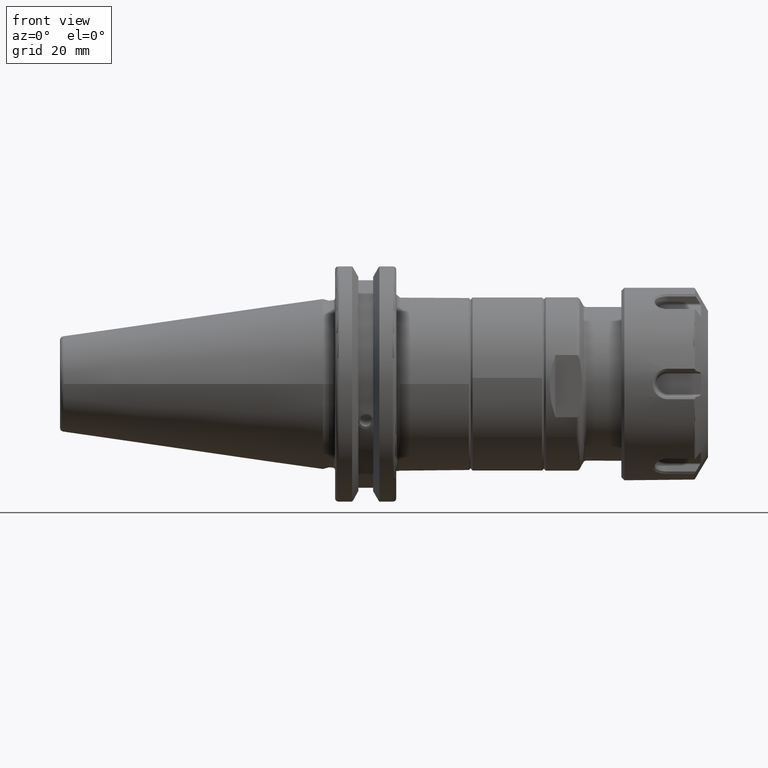
[diagram: clean part render]
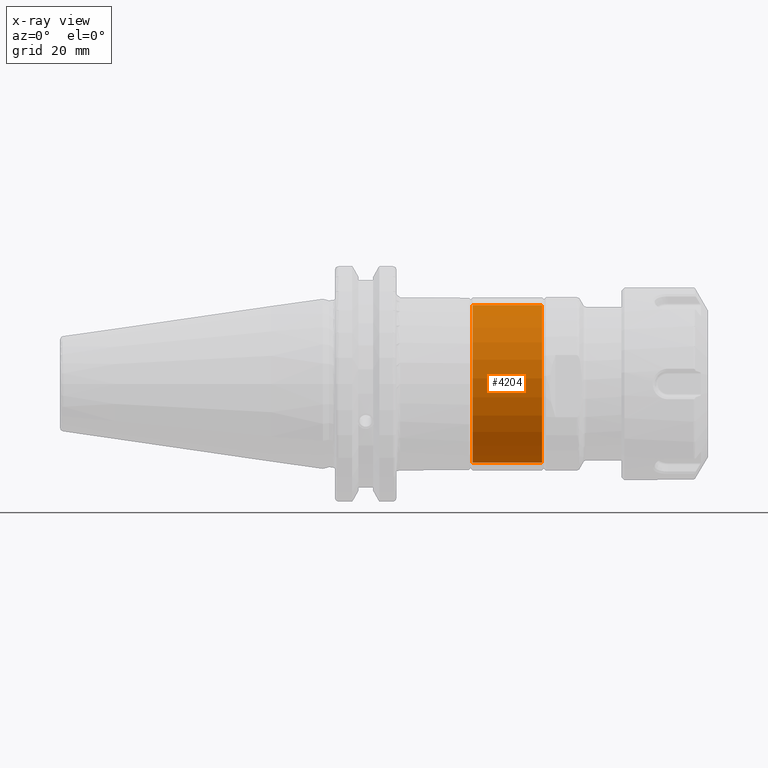
[diagram: x-ray — body ghosted, one internal face saturated and labeled with its STEP entity id]
A machine part, front view, then the same camera in x-ray: the body is ghosted and one INTERNAL B-rep face — a face not visible from any outside direction — is saturated and labeled: STEP entity #4204.
In plain terms, the highlighted cylindrical surface (bore or boss wall) has radius 20.5 mm, axis along (1, -0, 0).
Its self-contained STEP definition (entity closure, byte-faithful):
#489=CYLINDRICAL_SURFACE('',#4654,20.5);
#632=FACE_OUTER_BOUND('',#911,.T.);
#911=EDGE_LOOP('',(#3346,#3347,#3348,#3349,#3350,#3351));
#1186=LINE('',#7070,#1426);
#1426=VECTOR('',#5493,20.5);
#1648=CIRCLE('',#4649,20.5);
#1649=CIRCLE('',#4650,20.5);
#1652=CIRCLE('',#4655,20.5);
#1653=CIRCLE('',#4656,20.5);
#1966=VERTEX_POINT('',#7058);
#1967=VERTEX_POINT('',#7059);
#1970=VERTEX_POINT('',#7069);
#1971=VERTEX_POINT('',#7071);
#2457=EDGE_CURVE('',#1966,#1967,#1648,.T.);
#2458=EDGE_CURVE('',#1967,#1966,#1649,.T.);
#2462=EDGE_CURVE('',#1967,#1970,#1186,.T.);
#2463=EDGE_CURVE('',#1971,#1970,#1652,.T.);
#2464=EDGE_CURVE('',#1970,#1971,#1653,.T.);
#3346=ORIENTED_EDGE('',*,*,#2457,.F.);
#3347=ORIENTED_EDGE('',*,*,#2458,.F.);
#3348=ORIENTED_EDGE('',*,*,#2462,.T.);
#3349=ORIENTED_EDGE('',*,*,#2463,.F.);
#3350=ORIENTED_EDGE('',*,*,#2464,.F.);
#3351=ORIENTED_EDGE('',*,*,#2462,.F.);
#4204=ADVANCED_FACE('',(#632),#489,.F.);
#4649=AXIS2_PLACEMENT_3D('',#7060,#5480,#5481);
#4650=AXIS2_PLACEMENT_3D('',#7061,#5482,#5483);
#4654=AXIS2_PLACEMENT_3D('',#7068,#5491,#5492);
#4655=AXIS2_PLACEMENT_3D('',#7072,#5494,#5495);
#4656=AXIS2_PLACEMENT_3D('',#7073,#5496,#5497);
#5480=DIRECTION('center_axis',(-1.,0.,0.));
#5481=DIRECTION('ref_axis',(0.,-1.,0.));
#5482=DIRECTION('center_axis',(-1.,0.,0.));
#5483=DIRECTION('ref_axis',(0.,-1.,0.));
#5491=DIRECTION('center_axis',(1.,0.,0.));
#5492=DIRECTION('ref_axis',(0.,1.,0.));
#5493=DIRECTION('',(-1.,0.,0.));
#5494=DIRECTION('center_axis',(1.,0.,0.));
#5495=DIRECTION('ref_axis',(0.,-1.,0.));
#5496=DIRECTION('center_axis',(1.,0.,0.));
#5497=DIRECTION('ref_axis',(0.,-1.,0.));
#7058=CARTESIAN_POINT('',(18.5,20.5,-2.51052593825207E-15));
#7059=CARTESIAN_POINT('',(18.5,-20.5,-2.51052593825207E-15));
#7060=CARTESIAN_POINT('Origin',(18.5,0.,0.));
#7061=CARTESIAN_POINT('Origin',(18.5,0.,0.));
#7068=CARTESIAN_POINT('Origin',(9.5,0.,0.));
#7069=CARTESIAN_POINT('',(0.499999999999998,-20.5,-2.51052593825207E-15));
#7070=CARTESIAN_POINT('',(9.5,-20.5,-2.51052593825207E-15));
#7071=CARTESIAN_POINT('',(0.499999999999998,20.5,2.51052593825207E-15));
#7072=CARTESIAN_POINT('Origin',(0.499999999999998,0.,0.));
#7073=CARTESIAN_POINT('Origin',(0.499999999999998,0.,0.));